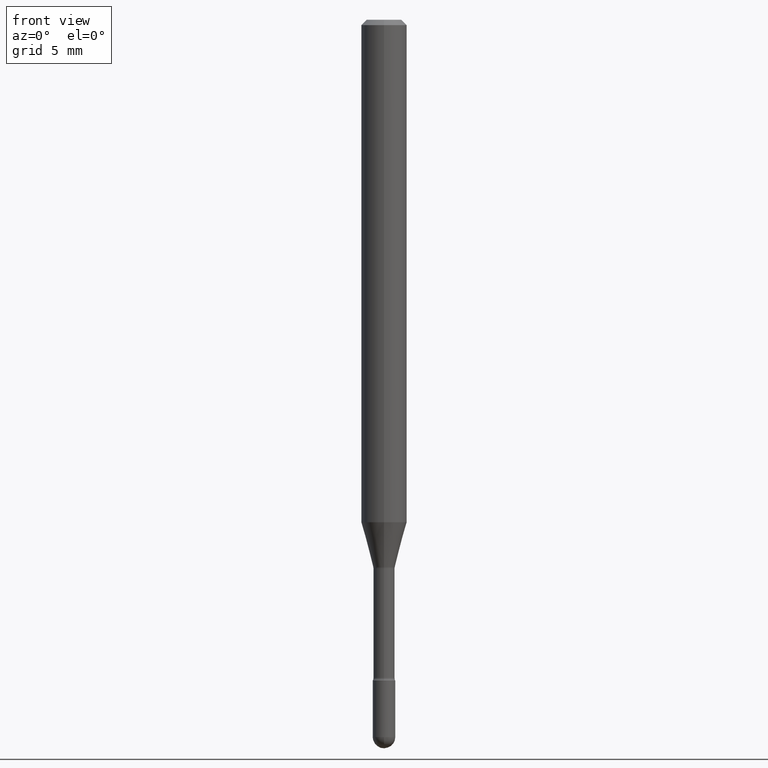
[diagram: clean part render]
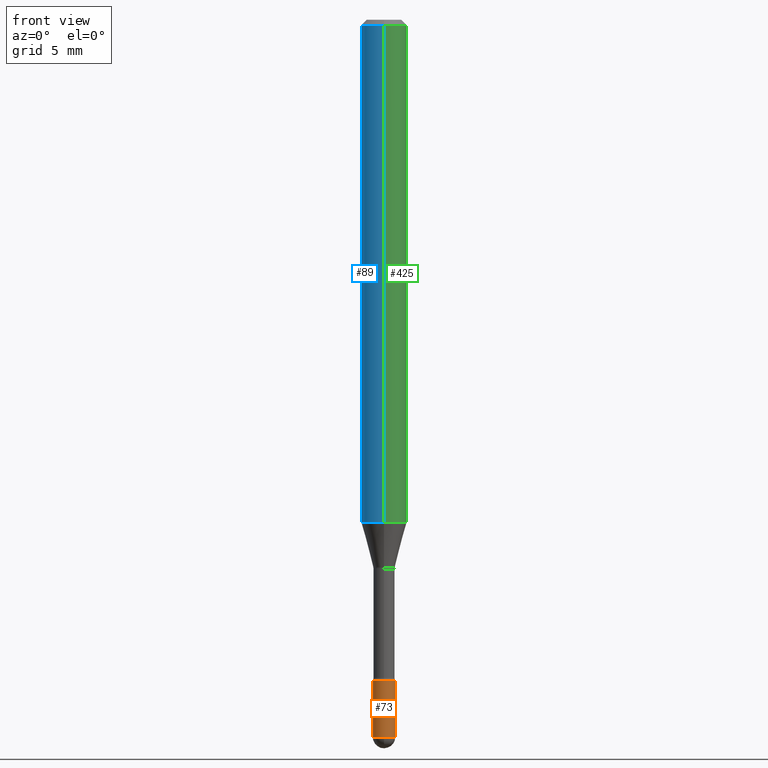
[diagram: same view with three faces highlighted in distinct colors, each labeled with its STEP entity id]
A machine part, front view with three faces highlighted in distinct colors.
Their STEP definitions:

[orange] entity #73 — the highlighted cylindrical surface (edge-blend (fillet) strip) has radius 0.7874 mm, axis along (-0, 0, 1).
#1 = CARTESIAN_POINT ( 'NONE',  ( 4.815128079378534076E-29, -6.874726756182154000E-15, -1.969000000000000306 ) ) ;
#5 = VERTEX_POINT ( 'NONE', #11 ) ;
#11 = CARTESIAN_POINT ( 'NONE',  ( -0.03099999999999999978, -6.383868704336178649E-15, -1.969000000000000306 ) ) ;
#16 = VERTEX_POINT ( 'NONE', #143 ) ;
#17 = ORIENTED_EDGE ( 'NONE', *, *, #355, .T. ) ;
#20 = ORIENTED_EDGE ( 'NONE', *, *, #110, .F. ) ;
#31 = CYLINDRICAL_SURFACE ( 'NONE', #206, 0.03099999999999999978 ) ;
#34 = DIRECTION ( 'NONE',  ( 1.000000000000000000, -6.982962677686266711E-15, 4.876176775795935232E-29 ) ) ;
#72 = DIRECTION ( 'NONE',  ( -2.445468806185136597E-29, 3.491481338843145583E-15, 1.000000000000000000 ) ) ;
#73 = ADVANCED_FACE ( 'NONE', ( #463 ), #31, .T. ) ;
#103 = AXIS2_PLACEMENT_3D ( 'NONE', #349, #341, #450 ) ;
#109 = ORIENTED_EDGE ( 'NONE', *, *, #400, .F. ) ;
#110 = EDGE_CURVE ( 'NONE', #5, #434, #546, .T. ) ;
#111 = DIRECTION ( 'NONE',  ( -2.445468806185136877E-29, 3.491481338843145188E-15, 1.000000000000000000 ) ) ;
#114 = CARTESIAN_POINT ( 'NONE',  ( 0.03099999999999999978, -6.550018991669739348E-15, -1.813999999999999835 ) ) ;
#136 = CARTESIAN_POINT ( 'NONE',  ( 4.815128079378534076E-29, -6.874726756182154000E-15, -1.969000000000000306 ) ) ;
#143 = CARTESIAN_POINT ( 'NONE',  ( -2.202682480855828862E-16, -0.03100000000000687969, -1.969000000000000306 ) ) ;
#147 = VERTEX_POINT ( 'NONE', #114 ) ;
#159 = ORIENTED_EDGE ( 'NONE', *, *, #348, .T. ) ;
#160 = CARTESIAN_POINT ( 'NONE',  ( 0.000000000000000000, 0.000000000000000000, 0.000000000000000000 ) ) ;
#169 = DIRECTION ( 'NONE',  ( -2.445468806185136877E-29, 3.491481338843145188E-15, 1.000000000000000000 ) ) ;
#179 = VECTOR ( 'NONE', #111, 39.37007874015748143 ) ;
#206 = AXIS2_PLACEMENT_3D ( 'NONE', #160, #72, #34 ) ;
#215 = CARTESIAN_POINT ( 'NONE',  ( 0.03099999999999999978, -2.164718430082742572E-16, 1.511614800496739984E-30 ) ) ;
#219 = CARTESIAN_POINT ( 'NONE',  ( 0.03099999999999999978, -6.820608795430084234E-15, -1.969000000000000306 ) ) ;
#223 = DIRECTION ( 'NONE',  ( 1.000000000000000000, -6.982962677686270655E-15, 0.000000000000000000 ) ) ;
#316 = EDGE_CURVE ( 'NONE', #343, #147, #332, .T. ) ;
#332 = LINE ( 'NONE', #215, #477 ) ;
#341 = DIRECTION ( 'NONE',  ( -2.445468806185136597E-29, 3.491481338843145583E-15, 1.000000000000000000 ) ) ;
#343 = VERTEX_POINT ( 'NONE', #219 ) ;
#348 = EDGE_CURVE ( 'NONE', #16, #343, #398, .T. ) ;
#349 = CARTESIAN_POINT ( 'NONE',  ( 4.436080414419837365E-29, -6.333547148661465016E-15, -1.813999999999999835 ) ) ;
#354 = CARTESIAN_POINT ( 'NONE',  ( -0.03099999999999999978, -6.383868704336178649E-15, -1.813999999999999835 ) ) ;
#355 = EDGE_CURVE ( 'NONE', #5, #16, #445, .T. ) ;
#369 = AXIS2_PLACEMENT_3D ( 'NONE', #136, #523, #486 ) ;
#389 = ORIENTED_EDGE ( 'NONE', *, *, #316, .T. ) ;
#398 = CIRCLE ( 'NONE', #369, 0.03099999999999999978 ) ;
#400 = EDGE_CURVE ( 'NONE', #434, #147, #518, .T. ) ;
#434 = VERTEX_POINT ( 'NONE', #354 ) ;
#445 = CIRCLE ( 'NONE', #517, 0.03099999999999999978 ) ;
#450 = DIRECTION ( 'NONE',  ( 1.000000000000000000, -6.982962677686270655E-15, 0.000000000000000000 ) ) ;
#463 = FACE_OUTER_BOUND ( 'NONE', #535, .T. ) ;
#477 = VECTOR ( 'NONE', #169, 39.37007874015748143 ) ;
#484 = DIRECTION ( 'NONE',  ( -2.445468806185136597E-29, 3.491481338843145583E-15, 1.000000000000000000 ) ) ;
#486 = DIRECTION ( 'NONE',  ( 1.000000000000000000, -6.982962677686270655E-15, 0.000000000000000000 ) ) ;
#508 = CARTESIAN_POINT ( 'NONE',  ( -0.03099999999999999978, 2.202682480856310560E-16, -1.524869877979020612E-30 ) ) ;
#517 = AXIS2_PLACEMENT_3D ( 'NONE', #1, #484, #223 ) ;
#518 = CIRCLE ( 'NONE', #103, 0.03099999999999999978 ) ;
#523 = DIRECTION ( 'NONE',  ( -2.445468806185136597E-29, 3.491481338843145583E-15, 1.000000000000000000 ) ) ;
#535 = EDGE_LOOP ( 'NONE', ( #20, #17, #159, #389, #109 ) ) ;
#546 = LINE ( 'NONE', #508, #179 ) ;

[blue] entity #89 — the highlighted cylindrical surface (edge-blend (fillet) strip) has radius 1.5875 mm, axis along (-0, 0, 1).
#8 = VECTOR ( 'NONE', #127, 39.37007874015748143 ) ;
#19 = EDGE_CURVE ( 'NONE', #189, #549, #76, .T. ) ;
#27 = FACE_OUTER_BOUND ( 'NONE', #178, .T. ) ;
#43 = LINE ( 'NONE', #554, #8 ) ;
#58 = VECTOR ( 'NONE', #430, 39.37007874015748143 ) ;
#76 = CIRCLE ( 'NONE', #499, 0.06250000000000000000 ) ;
#78 = CYLINDRICAL_SURFACE ( 'NONE', #115, 0.06250000000000000000 ) ;
#85 = EDGE_CURVE ( 'NONE', #366, #150, #253, .T. ) ;
#89 = ADVANCED_FACE ( 'NONE', ( #27 ), #78, .T. ) ;
#115 = AXIS2_PLACEMENT_3D ( 'NONE', #460, #277, #284 ) ;
#127 = DIRECTION ( 'NONE',  ( -2.445454562768948999E-29, 3.491501736225811078E-15, 1.000000000000000000 ) ) ;
#150 = VERTEX_POINT ( 'NONE', #237 ) ;
#164 = CARTESIAN_POINT ( 'NONE',  ( 3.373592863864740573E-29, -4.816652707775393500E-15, -1.379536105567578330 ) ) ;
#174 = CARTESIAN_POINT ( 'NONE',  ( 4.440892098500961428E-16, 0.06249999999999514971, -1.379536105567578552 ) ) ;
#178 = EDGE_LOOP ( 'NONE', ( #227, #264, #541, #224 ) ) ;
#184 = DIRECTION ( 'NONE',  ( -6.982962677686265922E-15, -1.000000000000000000, 3.483106191921935554E-15 ) ) ;
#189 = VERTEX_POINT ( 'NONE', #296 ) ;
#211 = CARTESIAN_POINT ( 'NONE',  ( 4.440892098500625669E-16, 0.06250000000000000000, 2.598545403771328462E-16 ) ) ;
#224 = ORIENTED_EDGE ( 'NONE', *, *, #19, .F. ) ;
#227 = ORIENTED_EDGE ( 'NONE', *, *, #303, .F. ) ;
#237 = CARTESIAN_POINT ( 'NONE',  ( -4.364351673553580935E-16, -0.06250000000000484335, -1.379536105567578108 ) ) ;
#253 = CIRCLE ( 'NONE', #433, 0.06250000000000000000 ) ;
#264 = ORIENTED_EDGE ( 'NONE', *, *, #85, .T. ) ;
#277 = DIRECTION ( 'NONE',  ( -2.445454562768948999E-29, 3.491501736225811078E-15, 1.000000000000000000 ) ) ;
#282 = EDGE_CURVE ( 'NONE', #150, #549, #43, .T. ) ;
#284 = DIRECTION ( 'NONE',  ( -6.982962677686265922E-15, -1.000000000000000000, 3.491501736225811472E-15 ) ) ;
#296 = CARTESIAN_POINT ( 'NONE',  ( 4.440892098500965372E-16, 0.06249999999999995837, -0.01500000000000030129 ) ) ;
#303 = EDGE_CURVE ( 'NONE', #366, #189, #377, .T. ) ;
#309 = CARTESIAN_POINT ( 'NONE',  ( 3.668181844153443834E-31, -5.237252604338745805E-17, -0.01500000000000008271 ) ) ;
#366 = VERTEX_POINT ( 'NONE', #174 ) ;
#377 = LINE ( 'NONE', #211, #58 ) ;
#406 = CARTESIAN_POINT ( 'NONE',  ( -4.364351673553912750E-16, -0.06250000000000005551, -0.01499999999999986587 ) ) ;
#416 = DIRECTION ( 'NONE',  ( -2.445454562768948999E-29, 3.491501736225811078E-15, 1.000000000000000000 ) ) ;
#430 = DIRECTION ( 'NONE',  ( -2.445454562768948999E-29, 3.491501736225811078E-15, 1.000000000000000000 ) ) ;
#433 = AXIS2_PLACEMENT_3D ( 'NONE', #164, #416, #548 ) ;
#460 = CARTESIAN_POINT ( 'NONE',  ( -1.169113584055446105E-44, 1.669184350826100908E-30, 4.780733988912460139E-16 ) ) ;
#485 = DIRECTION ( 'NONE',  ( -2.445454562768948999E-29, 3.491501736225811078E-15, 1.000000000000000000 ) ) ;
#499 = AXIS2_PLACEMENT_3D ( 'NONE', #309, #485, #184 ) ;
#541 = ORIENTED_EDGE ( 'NONE', *, *, #282, .T. ) ;
#548 = DIRECTION ( 'NONE',  ( -6.982962677686265922E-15, -1.000000000000000000, 4.370956789862821150E-15 ) ) ;
#549 = VERTEX_POINT ( 'NONE', #406 ) ;
#554 = CARTESIAN_POINT ( 'NONE',  ( -4.364351673553916201E-16, -0.06250000000000000000, 6.962922574053592803E-16 ) ) ;

[green] entity #425 — the highlighted cylindrical surface (edge-blend (fillet) strip) has radius 1.5875 mm, axis along (-0, 0, 1).
#8 = VECTOR ( 'NONE', #127, 39.37007874015748143 ) ;
#43 = LINE ( 'NONE', #554, #8 ) ;
#58 = VECTOR ( 'NONE', #430, 39.37007874015748143 ) ;
#92 = EDGE_CURVE ( 'NONE', #150, #366, #525, .T. ) ;
#97 = EDGE_CURVE ( 'NONE', #549, #189, #290, .T. ) ;
#127 = DIRECTION ( 'NONE',  ( -2.445454562768948999E-29, 3.491501736225811078E-15, 1.000000000000000000 ) ) ;
#142 = CYLINDRICAL_SURFACE ( 'NONE', #338, 0.06250000000000000000 ) ;
#150 = VERTEX_POINT ( 'NONE', #237 ) ;
#153 = CARTESIAN_POINT ( 'NONE',  ( 3.373592863864740573E-29, -4.816652707775393500E-15, -1.379536105567578330 ) ) ;
#174 = CARTESIAN_POINT ( 'NONE',  ( 4.440892098500961428E-16, 0.06249999999999514971, -1.379536105567578552 ) ) ;
#185 = DIRECTION ( 'NONE',  ( -6.982962677686265922E-15, -1.000000000000000000, 3.491501736225811472E-15 ) ) ;
#189 = VERTEX_POINT ( 'NONE', #296 ) ;
#200 = DIRECTION ( 'NONE',  ( -2.445454562768948999E-29, 3.491501736225811078E-15, 1.000000000000000000 ) ) ;
#211 = CARTESIAN_POINT ( 'NONE',  ( 4.440892098500625669E-16, 0.06250000000000000000, 2.598545403771328462E-16 ) ) ;
#237 = CARTESIAN_POINT ( 'NONE',  ( -4.364351673553580935E-16, -0.06250000000000484335, -1.379536105567578108 ) ) ;
#282 = EDGE_CURVE ( 'NONE', #150, #549, #43, .T. ) ;
#290 = CIRCLE ( 'NONE', #417, 0.06250000000000000000 ) ;
#291 = CARTESIAN_POINT ( 'NONE',  ( 3.668181844153443834E-31, -5.237252604338745805E-17, -0.01500000000000008271 ) ) ;
#296 = CARTESIAN_POINT ( 'NONE',  ( 4.440892098500965372E-16, 0.06249999999999995837, -0.01500000000000030129 ) ) ;
#302 = DIRECTION ( 'NONE',  ( -2.445454562768948999E-29, 3.491501736225811078E-15, 1.000000000000000000 ) ) ;
#303 = EDGE_CURVE ( 'NONE', #366, #189, #377, .T. ) ;
#314 = CARTESIAN_POINT ( 'NONE',  ( -1.169113584055446105E-44, 1.669184350826100908E-30, 4.780733988912460139E-16 ) ) ;
#327 = DIRECTION ( 'NONE',  ( -6.982962677686265922E-15, -1.000000000000000000, 3.483106191921935554E-15 ) ) ;
#329 = DIRECTION ( 'NONE',  ( -2.445454562768948999E-29, 3.491501736225811078E-15, 1.000000000000000000 ) ) ;
#338 = AXIS2_PLACEMENT_3D ( 'NONE', #314, #302, #185 ) ;
#366 = VERTEX_POINT ( 'NONE', #174 ) ;
#374 = DIRECTION ( 'NONE',  ( -6.982962677686265922E-15, -1.000000000000000000, 4.370956789862821150E-15 ) ) ;
#377 = LINE ( 'NONE', #211, #58 ) ;
#384 = AXIS2_PLACEMENT_3D ( 'NONE', #153, #200, #374 ) ;
#390 = FACE_OUTER_BOUND ( 'NONE', #404, .T. ) ;
#404 = EDGE_LOOP ( 'NONE', ( #479, #566, #533, #452 ) ) ;
#406 = CARTESIAN_POINT ( 'NONE',  ( -4.364351673553912750E-16, -0.06250000000000005551, -0.01499999999999986587 ) ) ;
#417 = AXIS2_PLACEMENT_3D ( 'NONE', #291, #329, #327 ) ;
#425 = ADVANCED_FACE ( 'NONE', ( #390 ), #142, .T. ) ;
#430 = DIRECTION ( 'NONE',  ( -2.445454562768948999E-29, 3.491501736225811078E-15, 1.000000000000000000 ) ) ;
#452 = ORIENTED_EDGE ( 'NONE', *, *, #282, .F. ) ;
#479 = ORIENTED_EDGE ( 'NONE', *, *, #92, .T. ) ;
#525 = CIRCLE ( 'NONE', #384, 0.06250000000000000000 ) ;
#533 = ORIENTED_EDGE ( 'NONE', *, *, #97, .F. ) ;
#549 = VERTEX_POINT ( 'NONE', #406 ) ;
#554 = CARTESIAN_POINT ( 'NONE',  ( -4.364351673553916201E-16, -0.06250000000000000000, 6.962922574053592803E-16 ) ) ;
#566 = ORIENTED_EDGE ( 'NONE', *, *, #303, .T. ) ;